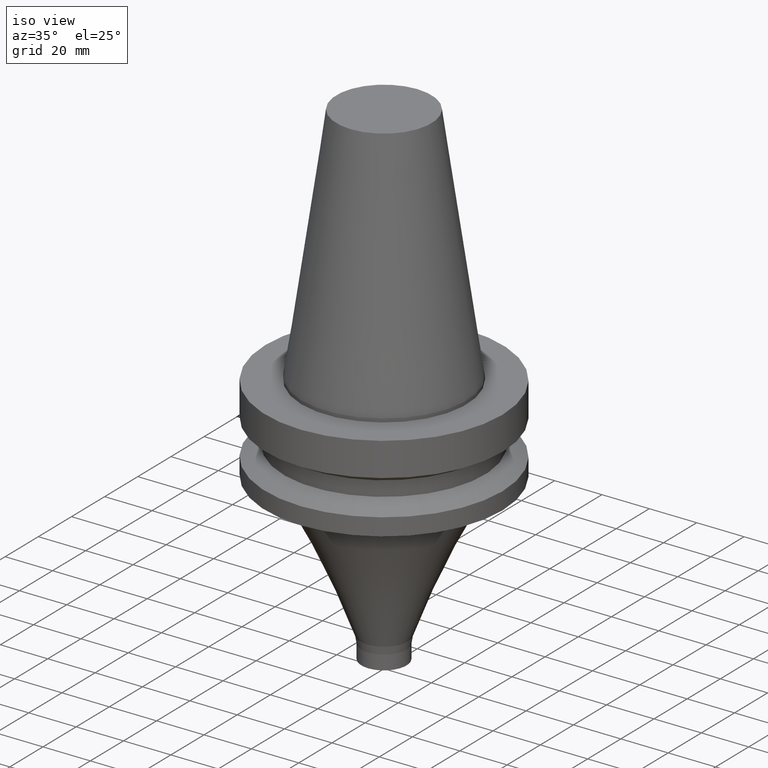
[diagram: clean part render]
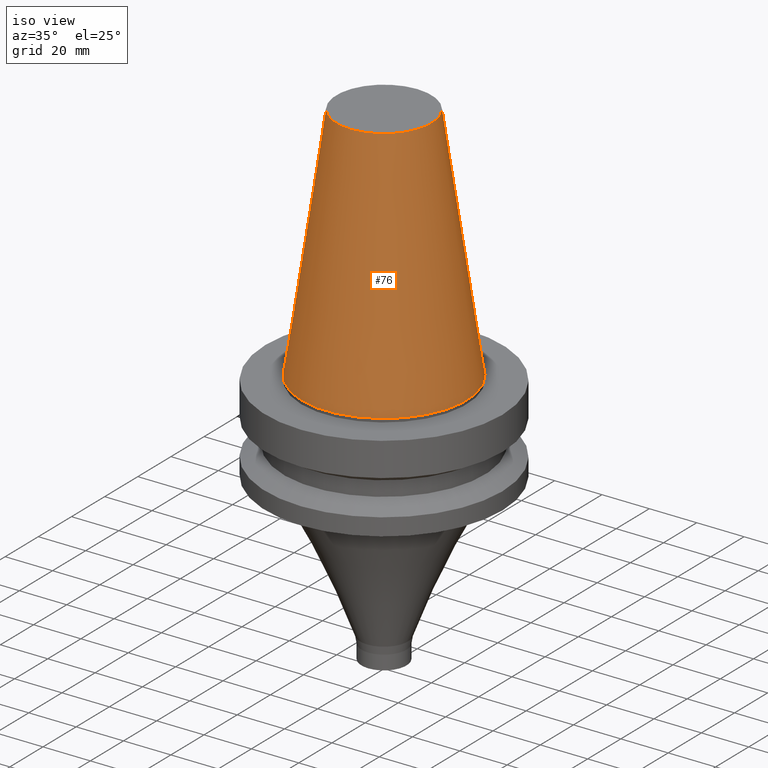
[diagram: tour spotlight — one face highlighted and labeled with its STEP entity id]
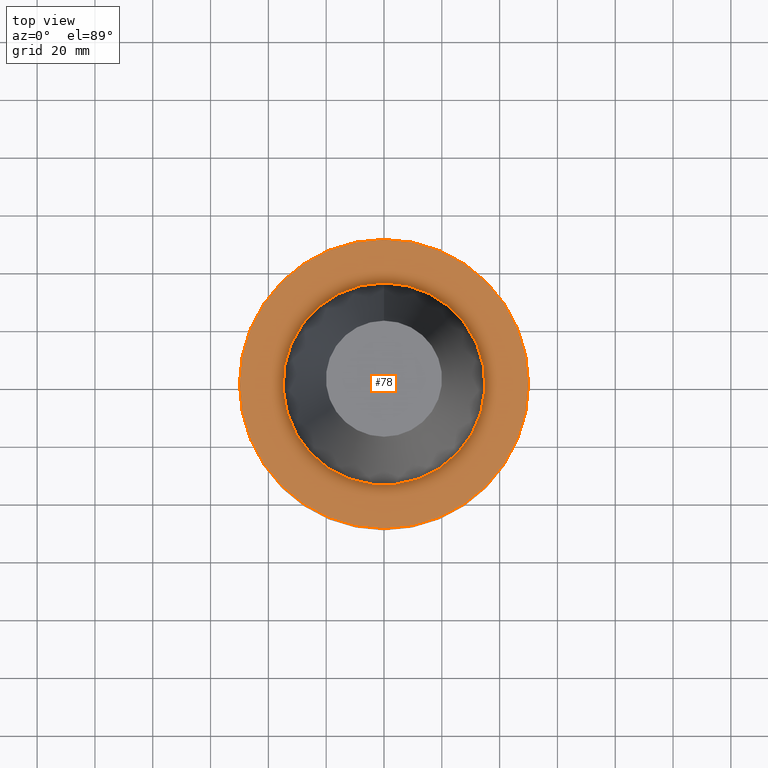
[diagram: tour spotlight — one face highlighted and labeled with its STEP entity id]
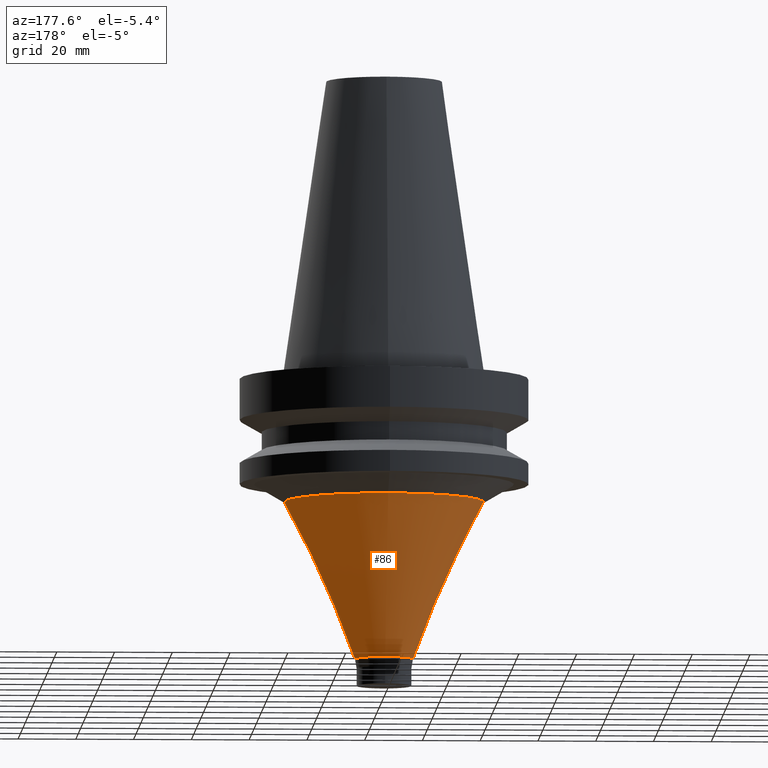
[diagram: tour spotlight — one face highlighted and labeled with its STEP entity id]
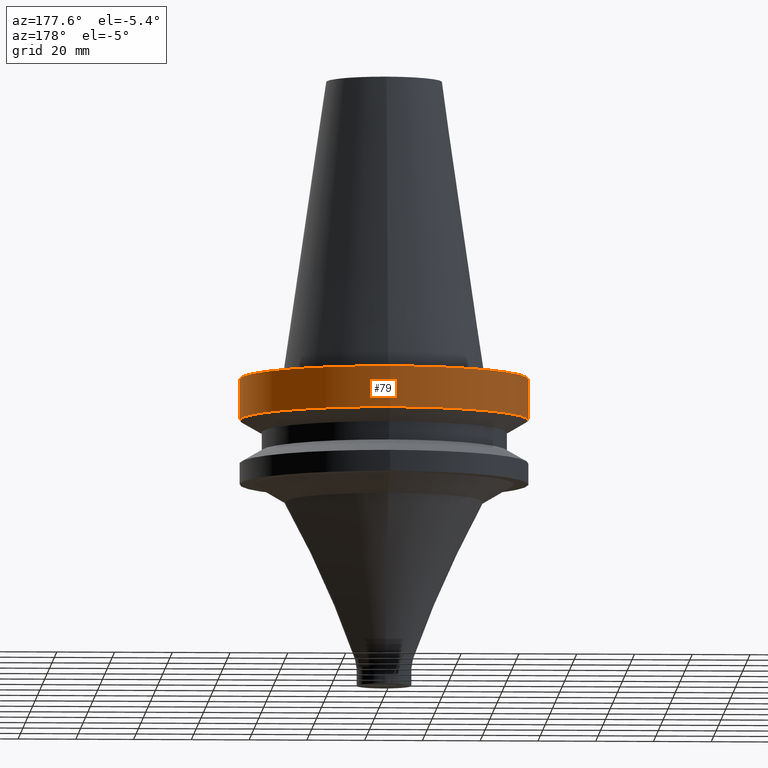
[diagram: tour spotlight — one face highlighted and labeled with its STEP entity id]
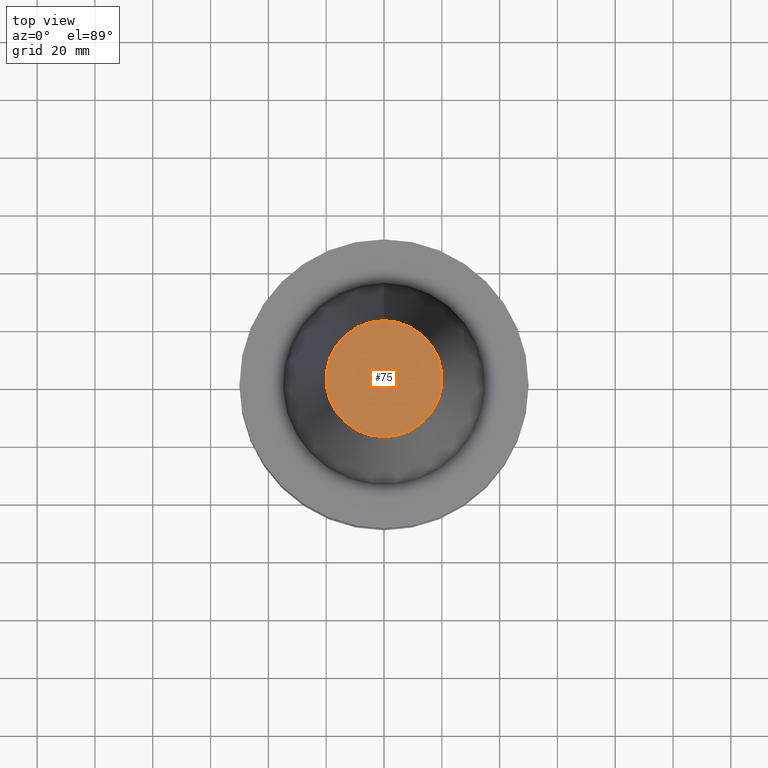
[diagram: tour spotlight — one face highlighted and labeled with its STEP entity id]
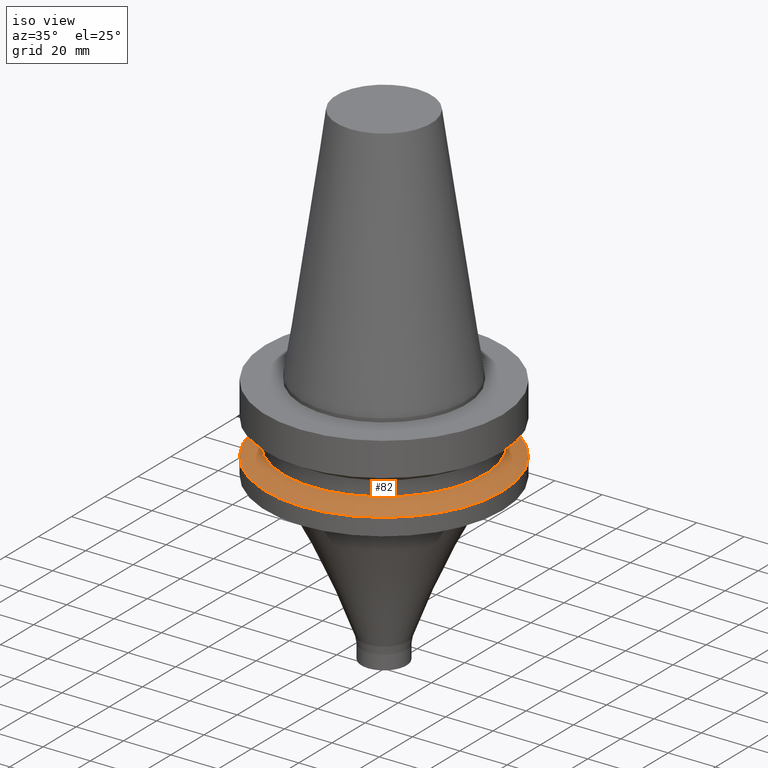
[diagram: tour spotlight — one face highlighted and labeled with its STEP entity id]
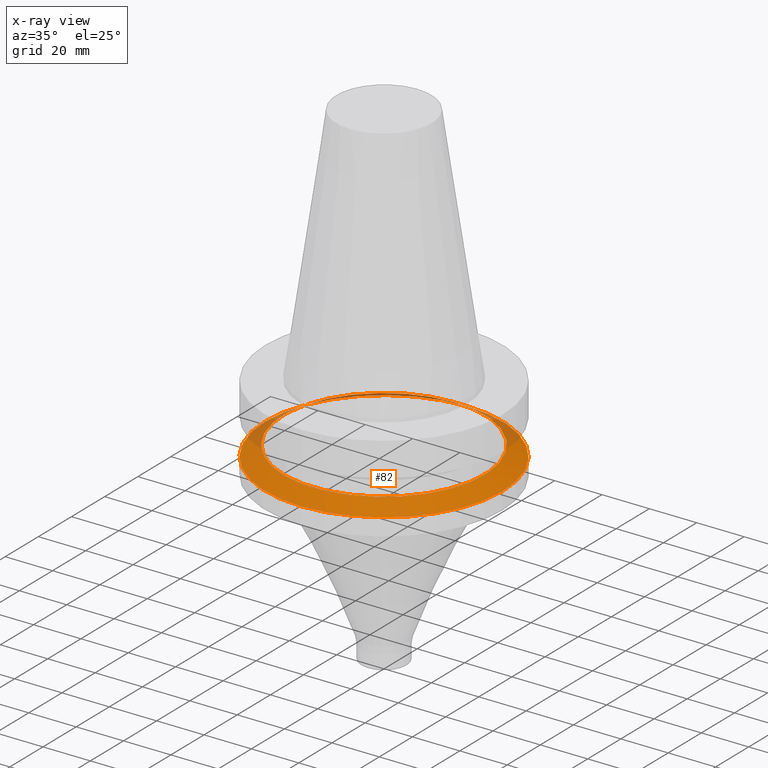
[diagram: x-ray of the same camera — body ghosted, this tour face saturated]
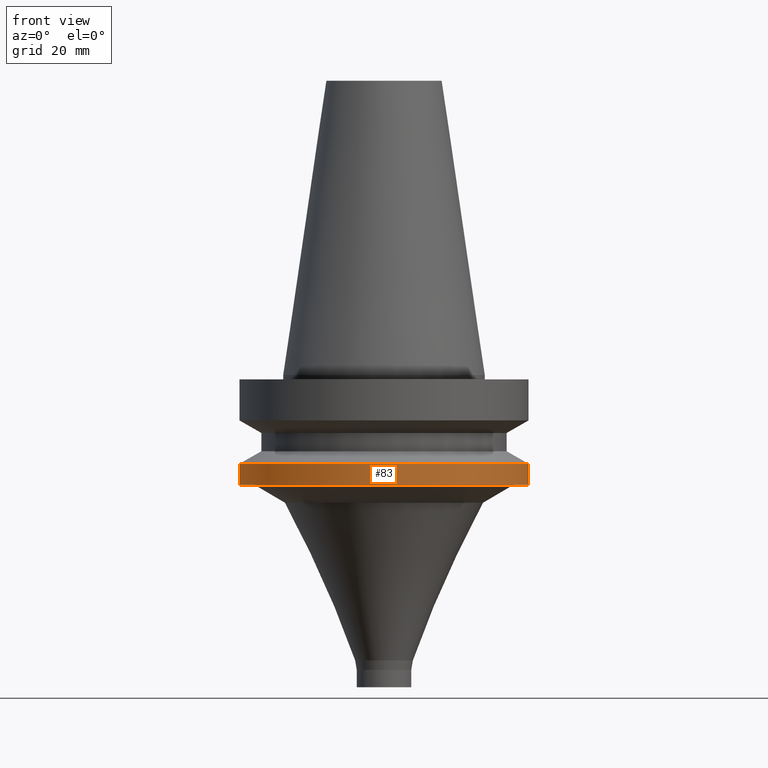
[diagram: tour spotlight — one face highlighted and labeled with its STEP entity id]
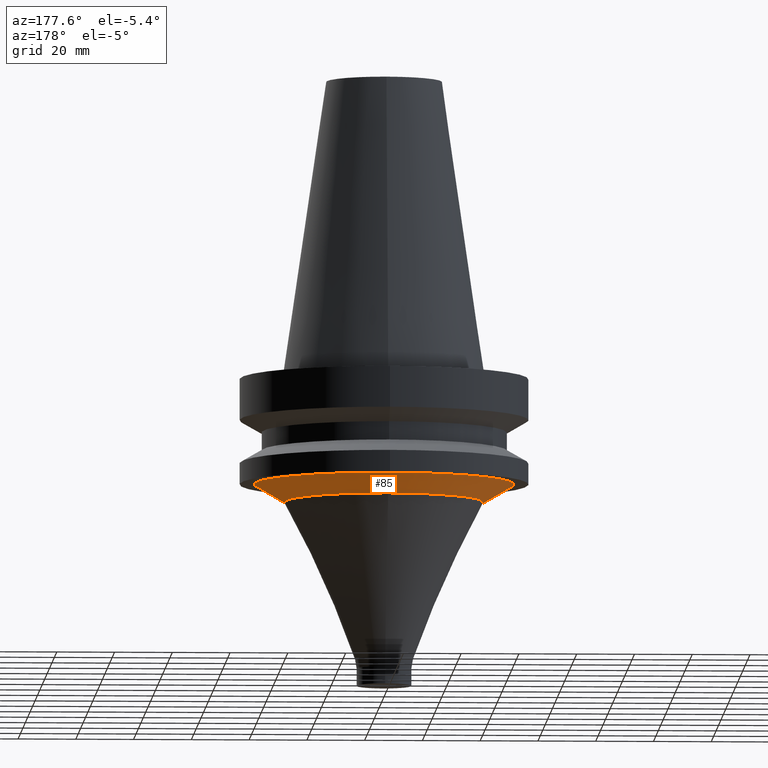
[diagram: tour spotlight — one face highlighted and labeled with its STEP entity id]
A machine part: a face-by-face anatomy tour. The part has 15 B-rep faces; the first image is the clean iso view, then the 8 largest visible faces are spotlighted one at a time (largest first), each with its STEP entity span.

Face 1 — iso view, entity #76. In plain terms, the highlighted conical surface has half-angle 8.297 deg.
Definition (entity closure, byte-faithful):
#76=ADVANCED_FACE('',(#93,#94),#95,.T.);
#93=FACE_BOUND('',#136,.T.);
#94=FACE_BOUND('',#137,.T.);
#95=CONICAL_SURFACE('',#138,27.5020833333334,0.144812498238939);
#136=EDGE_LOOP('',(#181));
#137=EDGE_LOOP('',(#182));
#138=AXIS2_PLACEMENT_3D('',#183,#184,#185);
#181=ORIENTED_EDGE('',*,*,#251,.F.);
#182=ORIENTED_EDGE('',*,*,#250,.T.);
#183=CARTESIAN_POINT('',(-3.11672610383001E-015,-6.04745286946008E-014,50.9));
#184=DIRECTION('',(6.12323399573677E-017,4.47299429684663E-016,-1.0));
#185=DIRECTION('',(-3.2216343471957E-032,1.0,4.47299429684663E-016));
#250=EDGE_CURVE('',#264,#264,#265,.T.);
#251=EDGE_CURVE('',#266,#266,#267,.T.);
#264=VERTEX_POINT('',#292);
#265=CIRCLE('',#293,20.0791666666668);
#266=VERTEX_POINT('',#294);
#267=CIRCLE('',#295,34.925);
#292=CARTESIAN_POINT('',(-6.23345220766003E-015,20.0791666666667,101.8));
#293=AXIS2_PLACEMENT_3D('',#320,#321,#322);
#294=CARTESIAN_POINT('',(3.04751304840905E-030,34.925,-5.25229210539779E-014));
#295=AXIS2_PLACEMENT_3D('',#323,#324,#325);
#320=CARTESIAN_POINT('',(-6.23345220766003E-015,-8.32420696655501E-014,101.8));
#321=DIRECTION('',(6.12323399573676E-017,4.47299429684663E-016,-1.0));
#322=DIRECTION('',(-3.2216343471957E-032,1.0,4.47299429684663E-016));
#323=CARTESIAN_POINT('',(4.35081943503005E-030,-3.77069877236514E-014,-7.105427357601E-014));
#324=DIRECTION('',(6.12323399573677E-017,4.47299429684663E-016,-1.0));
#325=DIRECTION('',(-3.2216343471957E-032,1.0,4.47299429684663E-016));

Face 2 — top view, entity #78. In plain terms, the highlighted planar face has unit normal (-0, -0, 1).
Definition (entity closure, byte-faithful):
#78=ADVANCED_FACE('',(#99,#100),#101,.T.);
#99=FACE_OUTER_BOUND('',#142,.T.);
#100=FACE_BOUND('',#143,.T.);
#101=PLANE('',#144);
#142=EDGE_LOOP('',(#191));
#143=EDGE_LOOP('',(#192));
#144=AXIS2_PLACEMENT_3D('',#193,#194,#195);
#191=ORIENTED_EDGE('',*,*,#253,.F.);
#192=ORIENTED_EDGE('',*,*,#252,.T.);
#193=CARTESIAN_POINT('',(9.18485099360491E-017,42.4625,-1.49999999999996));
#194=DIRECTION('',(-6.12323399573677E-017,-4.26140557437139E-015,1.0));
#195=DIRECTION('',(2.65762987556899E-031,-1.0,-4.26140557437139E-015));
#252=EDGE_CURVE('',#268,#268,#269,.T.);
#253=EDGE_CURVE('',#270,#270,#271,.T.);
#268=VERTEX_POINT('',#296);
#269=CIRCLE('',#297,34.9250000000001);
#270=VERTEX_POINT('',#298);
#271=CIRCLE('',#299,50.0);
#296=CARTESIAN_POINT('',(9.18485099360511E-017,34.9250000000001,-1.5));
#297=AXIS2_PLACEMENT_3D('',#326,#327,#328);
#298=CARTESIAN_POINT('',(9.18485099360471E-017,50.0,-1.49999999999993));
#299=AXIS2_PLACEMENT_3D('',#329,#330,#331);
#326=CARTESIAN_POINT('',(9.18485099360524E-017,-3.70360385791244E-014,-1.50000000000001));
#327=DIRECTION('',(6.12323399573677E-017,4.47299429684663E-016,-1.0));
#328=DIRECTION('',(-3.2216343471957E-032,1.0,4.47299429684663E-016));
#329=CARTESIAN_POINT('',(9.18485099360489E-017,-3.70360385791245E-014,-1.49999999999996));
#330=DIRECTION('',(6.12323399573677E-017,4.47299429684663E-016,-1.0));
#331=DIRECTION('',(-3.2216343471957E-032,1.0,4.47299429684663E-016));

Face 3 — auxiliary view, entity #86. In plain terms, the highlighted toroidal blend (fillet) surface has major radius 340.483 mm and minor (blend) radius 350 mm.
Definition (entity closure, byte-faithful):
#86=ADVANCED_FACE('',(#123,#124),#125,.F.);
#123=FACE_BOUND('',#166,.T.);
#124=FACE_BOUND('',#167,.T.);
#125=TOROIDAL_SURFACE('',#168,340.483407619581,350.0);
#166=EDGE_LOOP('',(#231));
#167=EDGE_LOOP('',(#232));
#168=AXIS2_PLACEMENT_3D('',#233,#234,#235);
#231=ORIENTED_EDGE('',*,*,#261,.F.);
#232=ORIENTED_EDGE('',*,*,#260,.T.);
#233=CARTESIAN_POINT('',(1.31107293747396E-014,8.30648776102872E-014,-214.114459513842));
#234=DIRECTION('',(6.12323399573677E-017,4.47299429684663E-016,-1.0));
#235=DIRECTION('',(-1.0,-4.82715273076902E-033,-6.12323399573677E-017));
#260=EDGE_CURVE('',#284,#284,#285,.T.);
#261=EDGE_CURVE('',#286,#286,#287,.T.);
#284=VERTEX_POINT('',#312);
#285=CIRCLE('',#313,34.5094666080367);
#286=VERTEX_POINT('',#314);
#287=CIRCLE('',#315,10.0593115406003);
#312=CARTESIAN_POINT('',(2.7048435800679E-015,34.5094666080367,-44.1734479190427));
#313=AXIS2_PLACEMENT_3D('',#350,#351,#352);
#314=CARTESIAN_POINT('',(6.04378600779488E-015,10.0593115406003,-98.7025158927913));
#315=AXIS2_PLACEMENT_3D('',#353,#354,#355);
#350=CARTESIAN_POINT('',(2.7048435800679E-015,-1.79482296622585E-014,-44.1734479190427));
#351=DIRECTION('',(6.12323399573677E-017,4.47299429684663E-016,-1.0));
#352=DIRECTION('',(-3.2216343471957E-032,1.0,4.47299429684663E-016));
#353=CARTESIAN_POINT('',(6.04378600779488E-015,6.44259134363547E-015,-98.7025158927913));
#354=DIRECTION('',(6.12323399573676E-017,4.47299429684663E-016,-1.0));
#355=DIRECTION('',(-3.2216343471957E-032,1.0,4.47299429684663E-016));

Face 4 — auxiliary view, entity #79. In plain terms, the highlighted cylindrical surface (bore or boss wall) has radius 50 mm, axis along (-0, -0, 1).
Definition (entity closure, byte-faithful):
#79=ADVANCED_FACE('',(#102,#103),#104,.T.);
#102=FACE_BOUND('',#145,.T.);
#103=FACE_BOUND('',#146,.T.);
#104=CYLINDRICAL_SURFACE('',#147,50.0);
#145=EDGE_LOOP('',(#196));
#146=EDGE_LOOP('',(#197));
#147=AXIS2_PLACEMENT_3D('',#198,#199,#200);
#196=ORIENTED_EDGE('',*,*,#254,.F.);
#197=ORIENTED_EDGE('',*,*,#253,.T.);
#198=CARTESIAN_POINT('',(5.26598123633362E-016,-3.38602126283633E-014,-8.59999999999999));
#199=DIRECTION('',(-6.12323399573676E-017,-4.47299429684663E-016,1.0));
#200=DIRECTION('',(-3.2216343471957E-032,1.0,4.47299429684663E-016));
#253=EDGE_CURVE('',#270,#270,#271,.T.);
#254=EDGE_CURVE('',#272,#272,#273,.T.);
#270=VERTEX_POINT('',#298);
#271=CIRCLE('',#299,50.0);
#272=VERTEX_POINT('',#300);
#273=CIRCLE('',#301,50.0);
#298=CARTESIAN_POINT('',(9.18485099360471E-017,50.0,-1.49999999999993));
#299=AXIS2_PLACEMENT_3D('',#329,#330,#331);
#300=CARTESIAN_POINT('',(9.61347737330673E-016,49.9999999999999,-15.7));
#301=AXIS2_PLACEMENT_3D('',#332,#333,#334);
#329=CARTESIAN_POINT('',(9.18485099360489E-017,-3.70360385791245E-014,-1.49999999999996));
#330=DIRECTION('',(6.12323399573677E-017,4.47299429684663E-016,-1.0));
#331=DIRECTION('',(-3.2216343471957E-032,1.0,4.47299429684663E-016));
#332=CARTESIAN_POINT('',(9.61347737330675E-016,-3.06843866776022E-014,-15.7));
#333=DIRECTION('',(6.12323399573677E-017,4.47299429684663E-016,-1.0));
#334=DIRECTION('',(-3.2216343471957E-032,1.0,4.47299429684663E-016));

Face 5 — top view, entity #75. In plain terms, the highlighted planar face has unit normal (-0, -0, 1).
Definition (entity closure, byte-faithful):
#75=ADVANCED_FACE('',(#91),#92,.T.);
#91=FACE_OUTER_BOUND('',#134,.T.);
#92=PLANE('',#135);
#134=EDGE_LOOP('',(#177));
#135=AXIS2_PLACEMENT_3D('',#178,#179,#180);
#177=ORIENTED_EDGE('',*,*,#250,.F.);
#178=CARTESIAN_POINT('',(-6.23345220766003E-015,10.0395833333333,101.8));
#179=DIRECTION('',(-6.12323399573677E-017,-1.22464679914735E-016,1.0));
#180=DIRECTION('',(1.23259516440783E-032,-1.0,-1.22464679914735E-016));
#250=EDGE_CURVE('',#264,#264,#265,.T.);
#264=VERTEX_POINT('',#292);
#265=CIRCLE('',#293,20.0791666666668);
#292=CARTESIAN_POINT('',(-6.23345220766003E-015,20.0791666666667,101.8));
#293=AXIS2_PLACEMENT_3D('',#320,#321,#322);
#320=CARTESIAN_POINT('',(-6.23345220766003E-015,-8.32420696655501E-014,101.8));
#321=DIRECTION('',(6.12323399573676E-017,4.47299429684663E-016,-1.0));
#322=DIRECTION('',(-3.2216343471957E-032,1.0,4.47299429684663E-016));

Face 6 — iso view, entity #82. An x-ray twin of the same camera follows (body ghosted, this face saturated) — the face is partly hidden behind the body. In plain terms, the highlighted conical surface has half-angle 60 deg.
Definition (entity closure, byte-faithful):
#82=ADVANCED_FACE('',(#111,#112),#113,.T.);
#111=FACE_BOUND('',#154,.T.);
#112=FACE_BOUND('',#155,.T.);
#113=CONICAL_SURFACE('',#156,46.25,1.04719755119658);
#154=EDGE_LOOP('',(#211));
#155=EDGE_LOOP('',(#212));
#156=AXIS2_PLACEMENT_3D('',#213,#214,#215);
#211=ORIENTED_EDGE('',*,*,#257,.F.);
#212=ORIENTED_EDGE('',*,*,#256,.T.);
#213=CARTESIAN_POINT('',(1.74726093185056E-015,-2.49433269053454E-014,-28.5349364905386));
#214=DIRECTION('',(6.12323399573677E-017,4.47299429684663E-016,-1.0));
#215=DIRECTION('',(-3.2216343471957E-032,1.0,4.47299429684663E-016));
#256=EDGE_CURVE('',#276,#276,#277,.T.);
#257=EDGE_CURVE('',#278,#278,#279,.T.);
#276=VERTEX_POINT('',#304);
#277=CIRCLE('',#305,42.5000000000001);
#278=VERTEX_POINT('',#306);
#279=CIRCLE('',#307,49.9999999999999);
#304=CARTESIAN_POINT('',(1.61468902700994E-015,42.5000000000001,-26.3698729810775));
#305=AXIS2_PLACEMENT_3D('',#338,#339,#340);
#306=CARTESIAN_POINT('',(1.87983283669117E-015,49.9999999999999,-30.6999999999997));
#307=AXIS2_PLACEMENT_3D('',#341,#342,#343);
#338=CARTESIAN_POINT('',(1.61468902700994E-015,-2.59117585783585E-014,-26.3698729810775));
#339=DIRECTION('',(6.12323399573677E-017,4.47299429684663E-016,-1.0));
#340=DIRECTION('',(-3.2216343471957E-032,1.0,4.47299429684663E-016));
#341=CARTESIAN_POINT('',(1.87983283669117E-015,-2.39748952323324E-014,-30.6999999999997));
#342=DIRECTION('',(6.12323399573677E-017,4.47299429684663E-016,-1.0));
#343=DIRECTION('',(-3.2216343471957E-032,1.0,4.47299429684663E-016));

Face 7 — front view, entity #83. In plain terms, the highlighted cylindrical surface (bore or boss wall) has radius 50 mm, axis along (-0, -0, 1).
Definition (entity closure, byte-faithful):
#83=ADVANCED_FACE('',(#114,#115),#116,.T.);
#114=FACE_BOUND('',#157,.T.);
#115=FACE_BOUND('',#158,.T.);
#116=CYLINDRICAL_SURFACE('',#159,50.0);
#157=EDGE_LOOP('',(#216));
#158=EDGE_LOOP('',(#217));
#159=AXIS2_PLACEMENT_3D('',#218,#219,#220);
#216=ORIENTED_EDGE('',*,*,#258,.F.);
#217=ORIENTED_EDGE('',*,*,#257,.T.);
#218=CARTESIAN_POINT('',(2.10333087753557E-015,-2.23422523139833E-014,-34.3499999999998));
#219=DIRECTION('',(-6.12323399573677E-017,-4.47299429684663E-016,1.0));
#220=DIRECTION('',(-3.2216343471957E-032,1.0,4.47299429684663E-016));
#257=EDGE_CURVE('',#278,#278,#279,.T.);
#258=EDGE_CURVE('',#280,#280,#281,.T.);
#278=VERTEX_POINT('',#306);
#279=CIRCLE('',#307,49.9999999999999);
#280=VERTEX_POINT('',#308);
#281=CIRCLE('',#309,50.0000000000001);
#306=CARTESIAN_POINT('',(1.87983283669117E-015,49.9999999999999,-30.6999999999997));
#307=AXIS2_PLACEMENT_3D('',#341,#342,#343);
#308=CARTESIAN_POINT('',(2.32682891837997E-015,50.0,-37.9999999999999));
#309=AXIS2_PLACEMENT_3D('',#344,#345,#346);
#341=CARTESIAN_POINT('',(1.87983283669117E-015,-2.39748952323324E-014,-30.6999999999997));
#342=DIRECTION('',(6.12323399573677E-017,4.47299429684663E-016,-1.0));
#343=DIRECTION('',(-3.2216343471957E-032,1.0,4.47299429684663E-016));
#344=CARTESIAN_POINT('',(2.32682891837997E-015,-2.07096093956343E-014,-37.9999999999999));
#345=DIRECTION('',(6.12323399573677E-017,4.47299429684663E-016,-1.0));
#346=DIRECTION('',(-3.2216343471957E-032,1.0,4.47299429684663E-016));

Face 8 — auxiliary view, entity #85. In plain terms, the highlighted conical surface has half-angle 59.524 deg.
Definition (entity closure, byte-faithful):
#85=ADVANCED_FACE('',(#120,#121),#122,.T.);
#120=FACE_BOUND('',#163,.T.);
#121=FACE_BOUND('',#164,.T.);
#122=CONICAL_SURFACE('',#165,39.7547333040184,1.03889197851725);
#163=EDGE_LOOP('',(#226));
#164=EDGE_LOOP('',(#227));
#165=AXIS2_PLACEMENT_3D('',#228,#229,#230);
#226=ORIENTED_EDGE('',*,*,#260,.F.);
#227=ORIENTED_EDGE('',*,*,#259,.T.);
#228=CARTESIAN_POINT('',(2.51583624922394E-015,-1.93289195289464E-014,-41.0867239595214));
#229=DIRECTION('',(-6.12323399573677E-017,-4.47299429684663E-016,1.0));
#230=DIRECTION('',(-3.2216343471957E-032,1.0,4.47299429684663E-016));
#259=EDGE_CURVE('',#282,#282,#283,.T.);
#260=EDGE_CURVE('',#284,#284,#285,.T.);
#282=VERTEX_POINT('',#310);
#283=CIRCLE('',#311,45.0000000000001);
#284=VERTEX_POINT('',#312);
#285=CIRCLE('',#313,34.5094666080367);
#310=CARTESIAN_POINT('',(2.32682891837997E-015,45.0000000000001,-38.0));
#311=AXIS2_PLACEMENT_3D('',#347,#348,#349);
#312=CARTESIAN_POINT('',(2.7048435800679E-015,34.5094666080367,-44.1734479190427));
#313=AXIS2_PLACEMENT_3D('',#350,#351,#352);
#347=CARTESIAN_POINT('',(2.32682891837997E-015,-2.07096093956343E-014,-38.0));
#348=DIRECTION('',(6.12323399573677E-017,4.47299429684663E-016,-1.0));
#349=DIRECTION('',(-3.2216343471957E-032,1.0,4.47299429684663E-016));
#350=CARTESIAN_POINT('',(2.7048435800679E-015,-1.79482296622585E-014,-44.1734479190427));
#351=DIRECTION('',(6.12323399573677E-017,4.47299429684663E-016,-1.0));
#352=DIRECTION('',(-3.2216343471957E-032,1.0,4.47299429684663E-016));